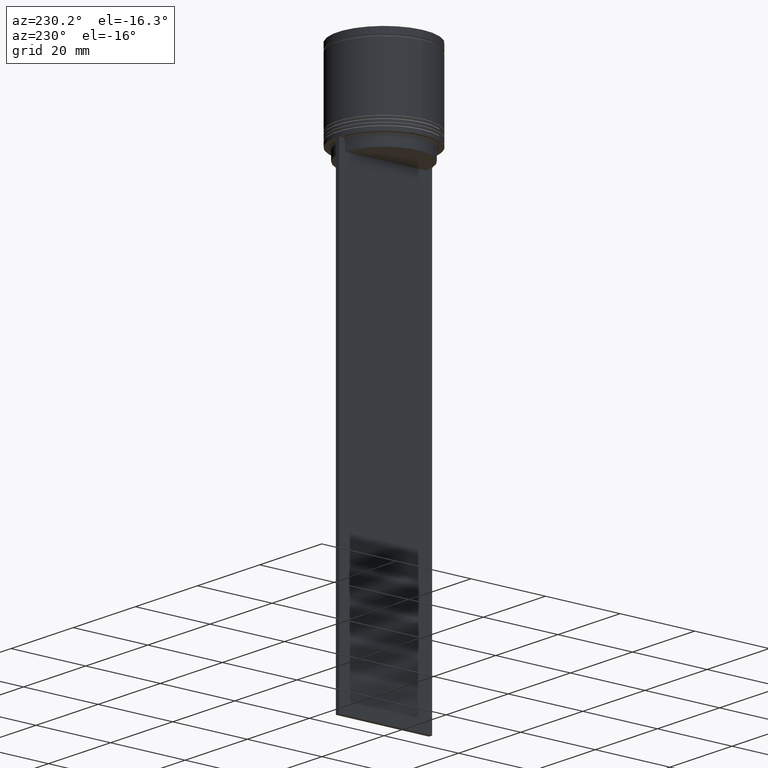
[diagram: clean part render]
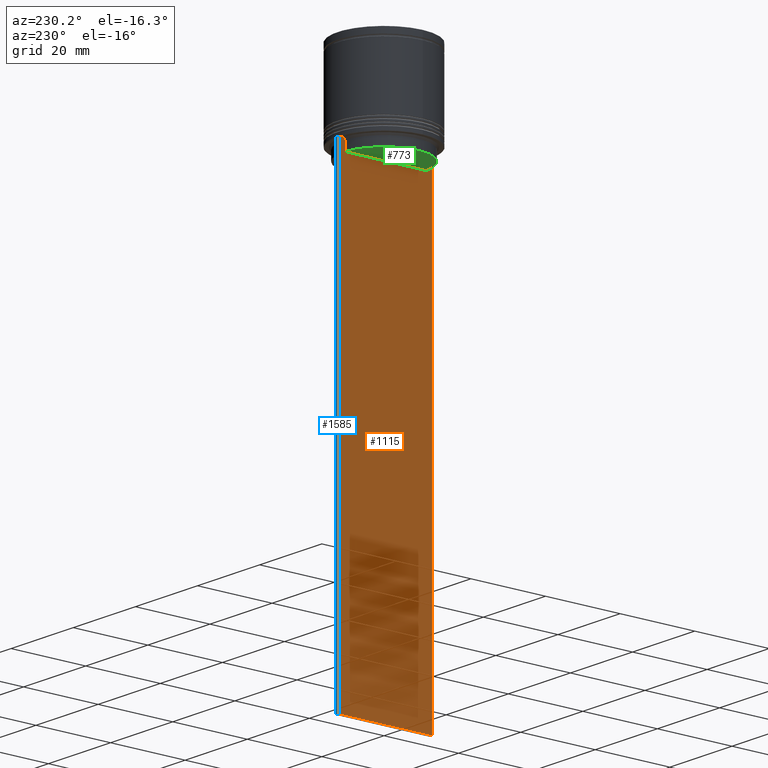
[diagram: same view with three faces highlighted in distinct colors, each labeled with its STEP entity id]
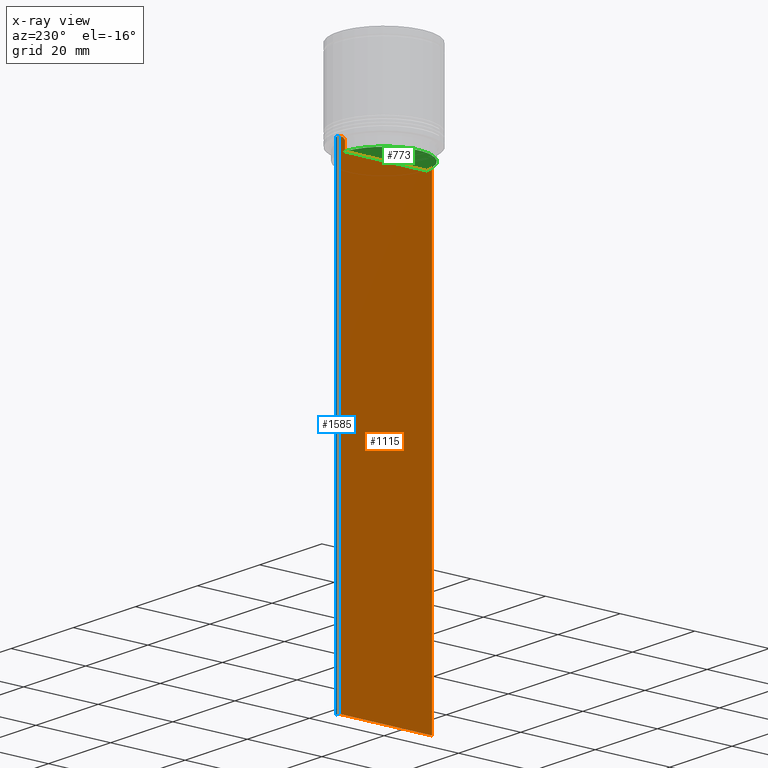
[diagram: x-ray of the same camera — body ghosted, the three highlighted faces saturated]
A machine part, auxiliary view with three faces highlighted in distinct colors.
The next image is the same camera in x-ray (body ghosted, the three faces saturated) — at least one of them is partly hidden behind the body in this view.
Their STEP definitions:

[orange] entity #1115 — the highlighted planar face has unit normal (-1, 0, 0).
#8 = VERTEX_POINT ( 'NONE', #781 ) ;
#16 = VECTOR ( 'NONE', #1438, 1000.000000000000000 ) ;
#77 = LINE ( 'NONE', #1823, #1504 ) ;
#81 = EDGE_CURVE ( 'NONE', #1835, #1282, #162, .T. ) ;
#106 = VERTEX_POINT ( 'NONE', #1614 ) ;
#114 = CARTESIAN_POINT ( 'NONE',  ( -0.5000000000000000000, -12.49999999999999289, -22.50000000000000000 ) ) ;
#162 = LINE ( 'NONE', #1133, #1838 ) ;
#168 = B_SPLINE_CURVE_WITH_KNOTS ( 'NONE', 3,
 ( #1241, #1598, #2083, #465 ),
 .UNSPECIFIED., .F., .F.,
 ( 4, 4 ),
 ( 0.05041323384703231408, 0.05112713601261610619 ),
 .UNSPECIFIED. ) ;
#172 = EDGE_CURVE ( 'NONE', #1170, #1100, #727, .T. ) ;
#201 = EDGE_CURVE ( 'NONE', #1481, #106, #383, .T. ) ;
#218 = ORIENTED_EDGE ( 'NONE', *, *, #239, .F. ) ;
#232 = DIRECTION ( 'NONE',  ( -0.000000000000000000, -0.000000000000000000, 1.000000000000000000 ) ) ;
#239 = EDGE_CURVE ( 'NONE', #106, #1170, #77, .T. ) ;
#269 = CARTESIAN_POINT ( 'NONE',  ( -0.5000000000000000000, -10.88852607105296855, -25.50000000000000000 ) ) ;
#271 = CARTESIAN_POINT ( 'NONE',  ( -0.5000000000000000000, -10.88852607105297032, 0.000000000000000000 ) ) ;
#285 = VECTOR ( 'NONE', #745, 1000.000000000000000 ) ;
#299 = CARTESIAN_POINT ( 'NONE',  ( -0.5000000000000000000, 10.90000000000000924, -25.50000000000000000 ) ) ;
#324 = AXIS2_PLACEMENT_3D ( 'NONE', #1192, #598, #1075 ) ;
#370 = CARTESIAN_POINT ( 'NONE',  ( -0.5000000000000000000, 10.88852607105297032, -22.99999999999999645 ) ) ;
#383 = LINE ( 'NONE', #1845, #285 ) ;
#392 = CARTESIAN_POINT ( 'NONE',  ( -0.5000000000000000000, 12.50000000000000711, -146.5000000000000000 ) ) ;
#407 = EDGE_CURVE ( 'NONE', #1100, #615, #1557, .T. ) ;
#408 = EDGE_LOOP ( 'NONE', ( #1565, #218, #1850, #2058, #1330, #1083, #1430, #1556, #1666, #1626, #1187, #1076 ) ) ;
#413 = EDGE_CURVE ( 'NONE', #615, #1573, #1226, .T. ) ;
#465 = CARTESIAN_POINT ( 'NONE',  ( -0.5000000000000000000, -11.38902980942626897, -22.50000000000000000 ) ) ;
#511 = CARTESIAN_POINT ( 'NONE',  ( -0.5000000000000000000, -12.49999999999999289, 2.519992006393609874 ) ) ;
#589 = VECTOR ( 'NONE', #1733, 1000.000000000000000 ) ;
#598 = DIRECTION ( 'NONE',  ( -1.000000000000000000, 0.000000000000000000, 0.000000000000000000 ) ) ;
#604 = LINE ( 'NONE', #114, #1478 ) ;
#609 = CARTESIAN_POINT ( 'NONE',  ( -0.5000000000000000000, -12.38991525394746596, -22.50000000000000000 ) ) ;
#615 = VERTEX_POINT ( 'NONE', #1038 ) ;
#630 = VECTOR ( 'NONE', #232, 1000.000000000000000 ) ;
#695 = VECTOR ( 'NONE', #1141, 1000.000000000000000 ) ;
#712 = DIRECTION ( 'NONE',  ( 0.000000000000000000, -1.000000000000000000, 0.000000000000000000 ) ) ;
#727 = B_SPLINE_CURVE_WITH_KNOTS ( 'NONE', 3,
 ( #1676, #1218, #909, #1549 ),
 .UNSPECIFIED., .F., .F.,
 ( 4, 4 ),
 ( 0.01935560801904635808, 0.02006307108468587813 ),
 .UNSPECIFIED. ) ;
#745 = DIRECTION ( 'NONE',  ( 0.000000000000000000, -1.000000000000000000, 0.000000000000000000 ) ) ;
#781 = CARTESIAN_POINT ( 'NONE',  ( -0.5000000000000000000, -10.88852607105297032, -22.99999999999999645 ) ) ;
#785 = EDGE_CURVE ( 'NONE', #869, #1876, #1576, .T. ) ;
#869 = VERTEX_POINT ( 'NONE', #2052 ) ;
#870 = FACE_OUTER_BOUND ( 'NONE', #408, .T. ) ;
#909 = CARTESIAN_POINT ( 'NONE',  ( -0.5000000000000000000, 11.05536450345590715, -22.83333719074559554 ) ) ;
#921 = CARTESIAN_POINT ( 'NONE',  ( -0.5000000000000000000, -12.49999999999999289, -22.50000000000000000 ) ) ;
#988 = CARTESIAN_POINT ( 'NONE',  ( -0.5000000000000000000, -11.38902980942626897, -22.50000000000000000 ) ) ;
#1004 = EDGE_CURVE ( 'NONE', #1045, #869, #1965, .T. ) ;
#1025 = CARTESIAN_POINT ( 'NONE',  ( -0.5000000000000000000, 11.38902980942626897, -22.50000000000000000 ) ) ;
#1038 = CARTESIAN_POINT ( 'NONE',  ( -0.5000000000000000000, 10.88852607105296855, -25.50000000000000000 ) ) ;
#1045 = VERTEX_POINT ( 'NONE', #921 ) ;
#1075 = DIRECTION ( 'NONE',  ( 0.000000000000000000, 0.000000000000000000, 1.000000000000000000 ) ) ;
#1076 = ORIENTED_EDGE ( 'NONE', *, *, #407, .F. ) ;
#1077 = EDGE_CURVE ( 'NONE', #1573, #8, #1388, .T. ) ;
#1083 = ORIENTED_EDGE ( 'NONE', *, *, #1004, .F. ) ;
#1100 = VERTEX_POINT ( 'NONE', #370 ) ;
#1115 = ADVANCED_FACE ( 'NONE', ( #870 ), #1183, .T. ) ;
#1133 = CARTESIAN_POINT ( 'NONE',  ( -0.5000000000000000000, -12.49999999999999289, -22.50000000000000000 ) ) ;
#1141 = DIRECTION ( 'NONE',  ( 0.000000000000000000, 0.000000000000000000, -1.000000000000000000 ) ) ;
#1170 = VERTEX_POINT ( 'NONE', #1025 ) ;
#1177 = DIRECTION ( 'NONE',  ( 0.000000000000000000, -1.000000000000000000, 0.000000000000000000 ) ) ;
#1183 = PLANE ( 'NONE',  #324 ) ;
#1186 = LINE ( 'NONE', #1208, #1409 ) ;
#1187 = ORIENTED_EDGE ( 'NONE', *, *, #413, .F. ) ;
#1192 = CARTESIAN_POINT ( 'NONE',  ( -0.5000000000000000000, -12.49999999999999289, 2.519992006393609874 ) ) ;
#1208 = CARTESIAN_POINT ( 'NONE',  ( -0.5000000000000000000, 12.50000000000000711, 2.519992006393609874 ) ) ;
#1218 = CARTESIAN_POINT ( 'NONE',  ( -0.5000000000000000000, 11.22219891375843126, -22.66667035472756808 ) ) ;
#1226 = LINE ( 'NONE', #299, #589 ) ;
#1235 = CARTESIAN_POINT ( 'NONE',  ( -0.5000000000000000000, -12.49999999999999289, -146.5000000000000000 ) ) ;
#1241 = CARTESIAN_POINT ( 'NONE',  ( -0.5000000000000000000, -10.88852607105297032, -22.99999999999999645 ) ) ;
#1282 = VERTEX_POINT ( 'NONE', #609 ) ;
#1330 = ORIENTED_EDGE ( 'NONE', *, *, #785, .F. ) ;
#1342 = DIRECTION ( 'NONE',  ( 0.000000000000000000, 0.000000000000000000, -1.000000000000000000 ) ) ;
#1388 = LINE ( 'NONE', #271, #630 ) ;
#1409 = VECTOR ( 'NONE', #1342, 1000.000000000000000 ) ;
#1430 = ORIENTED_EDGE ( 'NONE', *, *, #2023, .F. ) ;
#1436 = DIRECTION ( 'NONE',  ( 0.000000000000000000, -1.000000000000000000, 0.000000000000000000 ) ) ;
#1438 = DIRECTION ( 'NONE',  ( 0.000000000000000000, 0.000000000000000000, -1.000000000000000000 ) ) ;
#1478 = VECTOR ( 'NONE', #1436, 1000.000000000000000 ) ;
#1481 = VERTEX_POINT ( 'NONE', #1846 ) ;
#1504 = VECTOR ( 'NONE', #712, 1000.000000000000000 ) ;
#1549 = CARTESIAN_POINT ( 'NONE',  ( -0.5000000000000000000, 10.88852607105297032, -22.99999999999999645 ) ) ;
#1556 = ORIENTED_EDGE ( 'NONE', *, *, #81, .F. ) ;
#1557 = LINE ( 'NONE', #1886, #16 ) ;
#1565 = ORIENTED_EDGE ( 'NONE', *, *, #172, .F. ) ;
#1573 = VERTEX_POINT ( 'NONE', #269 ) ;
#1576 = LINE ( 'NONE', #1235, #1741 ) ;
#1598 = CARTESIAN_POINT ( 'NONE',  ( -0.5000000000000000000, -11.05536450423839412, -22.83333718996392747 ) ) ;
#1614 = CARTESIAN_POINT ( 'NONE',  ( -0.5000000000000000000, 12.38991525394746596, -22.50000000000000000 ) ) ;
#1625 = EDGE_CURVE ( 'NONE', #8, #1835, #168, .T. ) ;
#1626 = ORIENTED_EDGE ( 'NONE', *, *, #1077, .F. ) ;
#1666 = ORIENTED_EDGE ( 'NONE', *, *, #1625, .F. ) ;
#1676 = CARTESIAN_POINT ( 'NONE',  ( -0.5000000000000000000, 11.38902980942626897, -22.50000000000000000 ) ) ;
#1733 = DIRECTION ( 'NONE',  ( 0.000000000000000000, -1.000000000000000000, 0.000000000000000000 ) ) ;
#1741 = VECTOR ( 'NONE', #1870, 1000.000000000000000 ) ;
#1823 = CARTESIAN_POINT ( 'NONE',  ( -0.5000000000000000000, -12.49999999999999289, -22.50000000000000000 ) ) ;
#1835 = VERTEX_POINT ( 'NONE', #988 ) ;
#1838 = VECTOR ( 'NONE', #1177, 1000.000000000000000 ) ;
#1845 = CARTESIAN_POINT ( 'NONE',  ( -0.5000000000000000000, -12.49999999999999289, -22.50000000000000000 ) ) ;
#1846 = CARTESIAN_POINT ( 'NONE',  ( -0.5000000000000000000, 12.50000000000000711, -22.50000000000000000 ) ) ;
#1850 = ORIENTED_EDGE ( 'NONE', *, *, #201, .F. ) ;
#1870 = DIRECTION ( 'NONE',  ( 0.000000000000000000, 1.000000000000000000, 0.000000000000000000 ) ) ;
#1876 = VERTEX_POINT ( 'NONE', #392 ) ;
#1886 = CARTESIAN_POINT ( 'NONE',  ( -0.5000000000000000000, 10.88852607105297032, 0.000000000000000000 ) ) ;
#1892 = EDGE_CURVE ( 'NONE', #1481, #1876, #1186, .T. ) ;
#1965 = LINE ( 'NONE', #511, #695 ) ;
#2023 = EDGE_CURVE ( 'NONE', #1282, #1045, #604, .T. ) ;
#2052 = CARTESIAN_POINT ( 'NONE',  ( -0.5000000000000000000, -12.49999999999999289, -146.5000000000000000 ) ) ;
#2058 = ORIENTED_EDGE ( 'NONE', *, *, #1892, .T. ) ;
#2083 = CARTESIAN_POINT ( 'NONE',  ( -0.5000000000000000000, -11.22219891450653151, -22.66667035398018726 ) ) ;

[blue] entity #1585 — the highlighted planar face has unit normal (0, -1, -0).
#78 = FACE_OUTER_BOUND ( 'NONE', #2034, .T. ) ;
#197 = CARTESIAN_POINT ( 'NONE',  ( 0.5000000000000000000, 12.50000000000000711, -146.5000000000000000 ) ) ;
#227 = CARTESIAN_POINT ( 'NONE',  ( 0.5000000000000000000, 12.50000000000000711, 2.519992006393609874 ) ) ;
#392 = CARTESIAN_POINT ( 'NONE',  ( -0.5000000000000000000, 12.50000000000000711, -146.5000000000000000 ) ) ;
#405 = DIRECTION ( 'NONE',  ( 0.000000000000000000, -1.000000000000000000, -0.000000000000000000 ) ) ;
#422 = VECTOR ( 'NONE', #1689, 1000.000000000000000 ) ;
#662 = VECTOR ( 'NONE', #1812, 1000.000000000000000 ) ;
#677 = DIRECTION ( 'NONE',  ( 1.000000000000000000, 0.000000000000000000, 0.000000000000000000 ) ) ;
#705 = ORIENTED_EDGE ( 'NONE', *, *, #1492, .T. ) ;
#852 = ORIENTED_EDGE ( 'NONE', *, *, #1892, .F. ) ;
#919 = CARTESIAN_POINT ( 'NONE',  ( 0.5000000000000000000, 12.50000000000000711, 2.519992006393609874 ) ) ;
#1050 = PLANE ( 'NONE',  #1403 ) ;
#1131 = CARTESIAN_POINT ( 'NONE',  ( 0.5000000000000000000, 12.50000000000000711, -22.50000000000000000 ) ) ;
#1186 = LINE ( 'NONE', #1208, #1409 ) ;
#1208 = CARTESIAN_POINT ( 'NONE',  ( -0.5000000000000000000, 12.50000000000000711, 2.519992006393609874 ) ) ;
#1342 = DIRECTION ( 'NONE',  ( 0.000000000000000000, 0.000000000000000000, -1.000000000000000000 ) ) ;
#1403 = AXIS2_PLACEMENT_3D ( 'NONE', #919, #405, #2033 ) ;
#1409 = VECTOR ( 'NONE', #1342, 1000.000000000000000 ) ;
#1442 = VECTOR ( 'NONE', #677, 1000.000000000000000 ) ;
#1463 = EDGE_CURVE ( 'NONE', #1888, #1876, #1477, .T. ) ;
#1477 = LINE ( 'NONE', #197, #662 ) ;
#1481 = VERTEX_POINT ( 'NONE', #1846 ) ;
#1492 = EDGE_CURVE ( 'NONE', #1825, #1888, #2026, .T. ) ;
#1585 = ADVANCED_FACE ( 'NONE', ( #78 ), #1050, .F. ) ;
#1631 = CARTESIAN_POINT ( 'NONE',  ( 0.5000000000000000000, 12.50000000000000711, -22.50000000000000000 ) ) ;
#1689 = DIRECTION ( 'NONE',  ( 0.000000000000000000, 0.000000000000000000, -1.000000000000000000 ) ) ;
#1812 = DIRECTION ( 'NONE',  ( -1.000000000000000000, 0.000000000000000000, 0.000000000000000000 ) ) ;
#1825 = VERTEX_POINT ( 'NONE', #1131 ) ;
#1843 = EDGE_CURVE ( 'NONE', #1481, #1825, #1960, .T. ) ;
#1846 = CARTESIAN_POINT ( 'NONE',  ( -0.5000000000000000000, 12.50000000000000711, -22.50000000000000000 ) ) ;
#1876 = VERTEX_POINT ( 'NONE', #392 ) ;
#1880 = ORIENTED_EDGE ( 'NONE', *, *, #1463, .T. ) ;
#1888 = VERTEX_POINT ( 'NONE', #2009 ) ;
#1892 = EDGE_CURVE ( 'NONE', #1481, #1876, #1186, .T. ) ;
#1960 = LINE ( 'NONE', #1631, #1442 ) ;
#2009 = CARTESIAN_POINT ( 'NONE',  ( 0.5000000000000000000, 12.50000000000000711, -146.5000000000000000 ) ) ;
#2026 = LINE ( 'NONE', #227, #422 ) ;
#2033 = DIRECTION ( 'NONE',  ( 0.000000000000000000, 0.000000000000000000, -1.000000000000000000 ) ) ;
#2034 = EDGE_LOOP ( 'NONE', ( #852, #2062, #705, #1880 ) ) ;
#2062 = ORIENTED_EDGE ( 'NONE', *, *, #1843, .T. ) ;

[green] entity #773 — the highlighted planar face has unit normal (0, -0, 1).
#138 = DIRECTION ( 'NONE',  ( 1.000000000000000000, 0.000000000000000000, 0.000000000000000000 ) ) ;
#187 = AXIS2_PLACEMENT_3D ( 'NONE', #1223, #297, #138 ) ;
#269 = CARTESIAN_POINT ( 'NONE',  ( -0.5000000000000000000, -10.88852607105296855, -25.50000000000000000 ) ) ;
#297 = DIRECTION ( 'NONE',  ( 0.000000000000000000, -0.000000000000000000, 1.000000000000000000 ) ) ;
#299 = CARTESIAN_POINT ( 'NONE',  ( -0.5000000000000000000, 10.90000000000000924, -25.50000000000000000 ) ) ;
#413 = EDGE_CURVE ( 'NONE', #615, #1573, #1226, .T. ) ;
#525 = DIRECTION ( 'NONE',  ( -0.000000000000000000, -0.000000000000000000, 1.000000000000000000 ) ) ;
#589 = VECTOR ( 'NONE', #1733, 1000.000000000000000 ) ;
#603 = FACE_OUTER_BOUND ( 'NONE', #1868, .T. ) ;
#615 = VERTEX_POINT ( 'NONE', #1038 ) ;
#649 = EDGE_CURVE ( 'NONE', #615, #1573, #1202, .T. ) ;
#659 = AXIS2_PLACEMENT_3D ( 'NONE', #1977, #525, #1523 ) ;
#744 = ORIENTED_EDGE ( 'NONE', *, *, #413, .T. ) ;
#773 = ADVANCED_FACE ( 'NONE', ( #603 ), #1380, .F. ) ;
#1038 = CARTESIAN_POINT ( 'NONE',  ( -0.5000000000000000000, 10.88852607105296855, -25.50000000000000000 ) ) ;
#1202 = CIRCLE ( 'NONE', #659, 10.90000000000000924 ) ;
#1223 = CARTESIAN_POINT ( 'NONE',  ( 0.000000000000000000, 10.90000000000000924, -25.50000000000000000 ) ) ;
#1226 = LINE ( 'NONE', #299, #589 ) ;
#1380 = PLANE ( 'NONE',  #187 ) ;
#1523 = DIRECTION ( 'NONE',  ( 1.000000000000000000, 0.000000000000000000, 0.000000000000000000 ) ) ;
#1573 = VERTEX_POINT ( 'NONE', #269 ) ;
#1733 = DIRECTION ( 'NONE',  ( 0.000000000000000000, -1.000000000000000000, 0.000000000000000000 ) ) ;
#1836 = ORIENTED_EDGE ( 'NONE', *, *, #649, .F. ) ;
#1868 = EDGE_LOOP ( 'NONE', ( #1836, #744 ) ) ;
#1977 = CARTESIAN_POINT ( 'NONE',  ( 0.000000000000000000, 0.000000000000000000, -25.50000000000000000 ) ) ;